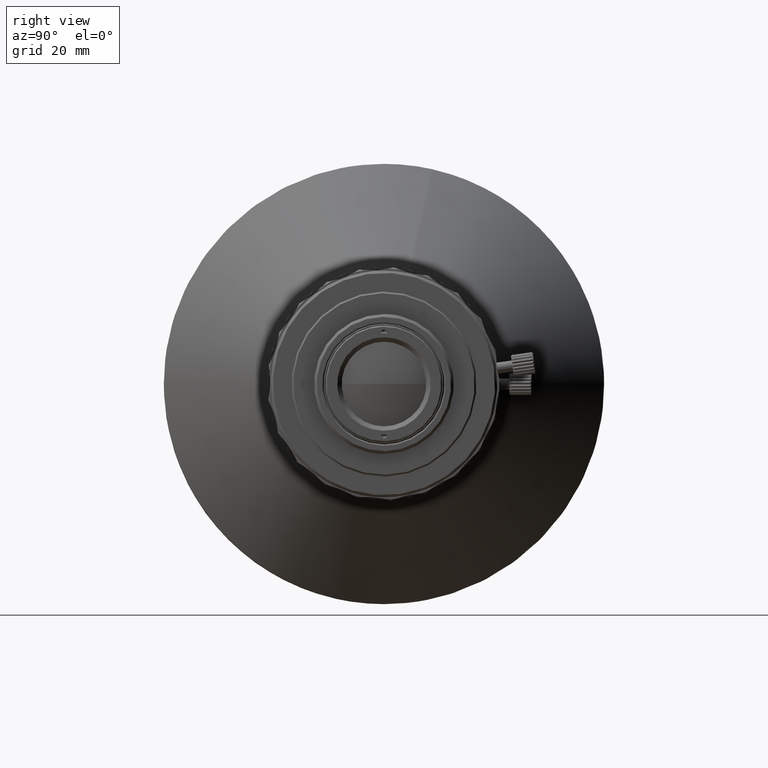
[diagram: clean part render]
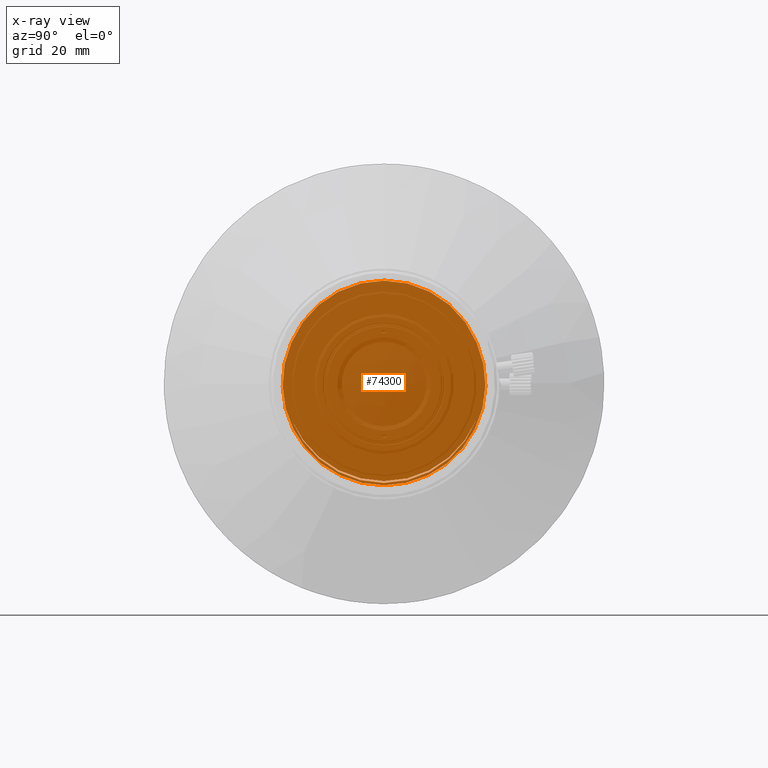
[diagram: x-ray — body ghosted, one internal face saturated and labeled with its STEP entity id]
A machine part, right view, then the same camera in x-ray: the body is ghosted and one INTERNAL B-rep face — a face not visible from any outside direction — is saturated and labeled: STEP entity #74300.
In plain terms, the highlighted planar face has unit normal (-1, 0, 0).
Its self-contained STEP definition (entity closure, byte-faithful):
#4233 = DIRECTION ( 'NONE',  ( 0.000000000000000000, 0.000000000000000000, -1.000000000000000000 ) ) ;
#5985 = DIRECTION ( 'NONE',  ( 0.000000000000000000, 0.000000000000000000, 1.000000000000000000 ) ) ;
#6525 = CARTESIAN_POINT ( 'NONE',  ( 1.766999999999999904, 0.000000000000000000, 0.5480619857394231076 ) ) ;
#9457 = CARTESIAN_POINT ( 'NONE',  ( 1.766999999999999904, 0.000000000000000000, 0.5480619857394231076 ) ) ;
#11777 = CARTESIAN_POINT ( 'NONE',  ( 1.766999999999999904, 2.975999692594989788E-09, -17.99999999702400544 ) ) ;
#12095 = DIRECTION ( 'NONE',  ( 1.000000000000000000, 0.000000000000000000, 0.000000000000000000 ) ) ;
#12993 = VERTEX_POINT ( 'NONE', #11777 ) ;
#14002 = EDGE_CURVE ( 'NONE', #21518, #57614, #62373, .T. ) ;
#15633 = CARTESIAN_POINT ( 'NONE',  ( 1.766999999999999904, 2.975999692594989788E-09, -2.220446049250309925E-15 ) ) ;
#17156 = ORIENTED_EDGE ( 'NONE', *, *, #29795, .T. ) ;
#18125 = CIRCLE ( 'NONE', #46917, 17.99999999702400189 ) ;
#18331 = CIRCLE ( 'NONE', #62166, 18.41985093242579907 ) ;
#18469 = EDGE_LOOP ( 'NONE', ( #37378, #59983, #17156 ) ) ;
#19261 = DIRECTION ( 'NONE',  ( -1.000000000000000000, 0.000000000000000000, 0.000000000000000000 ) ) ;
#20245 = CARTESIAN_POINT ( 'NONE',  ( 1.766999999999999904, 16.78019908883086941, -6.513441373954288238 ) ) ;
#20672 = CARTESIAN_POINT ( 'NONE',  ( 1.766999999999999904, 0.000000000000000000, 0.5480619857394231076 ) ) ;
#21518 = VERTEX_POINT ( 'NONE', #75067 ) ;
#22757 = DIRECTION ( 'NONE',  ( 0.000000000000000000, 0.000000000000000000, -1.000000000000000000 ) ) ;
#24680 = CARTESIAN_POINT ( 'NONE',  ( 1.766999999999999904, 2.975999692594989788E-09, -2.220446049250309925E-15 ) ) ;
#24847 = AXIS2_PLACEMENT_3D ( 'NONE', #40958, #19261, #5985 ) ;
#28330 = CIRCLE ( 'NONE', #68394, 17.99999999702400189 ) ;
#28757 = AXIS2_PLACEMENT_3D ( 'NONE', #9457, #63571, #38919 ) ;
#29795 = EDGE_CURVE ( 'NONE', #59348, #55797, #34014, .T. ) ;
#30708 = CIRCLE ( 'NONE', #40719, 18.41985093242579907 ) ;
#34014 = CIRCLE ( 'NONE', #42766, 18.20549123643099776 ) ;
#34079 = DIRECTION ( 'NONE',  ( 1.000000000000000000, 0.000000000000000000, 0.000000000000000000 ) ) ;
#36234 = CARTESIAN_POINT ( 'NONE',  ( 1.766999999999999904, -16.78019901214234011, -6.513441556188673154 ) ) ;
#37378 = ORIENTED_EDGE ( 'NONE', *, *, #49083, .T. ) ;
#37830 = EDGE_CURVE ( 'NONE', #58302, #66745, #30708, .T. ) ;
#38181 = EDGE_LOOP ( 'NONE', ( #55730, #60449, #48262, #57664 ) ) ;
#38919 = DIRECTION ( 'NONE',  ( 0.000000000000000000, 0.000000000000000000, 1.000000000000000000 ) ) ;
#39214 = CARTESIAN_POINT ( 'NONE',  ( 1.766999999999999904, 0.000000000000000000, 18.75355322217042087 ) ) ;
#39680 = PLANE ( 'NONE',  #28757 ) ;
#40719 = AXIS2_PLACEMENT_3D ( 'NONE', #24680, #12095, #47799 ) ;
#40958 = CARTESIAN_POINT ( 'NONE',  ( 1.766999999999999904, 0.000000000000000000, 0.5480619857394231076 ) ) ;
#42766 = AXIS2_PLACEMENT_3D ( 'NONE', #20672, #62221, #68501 ) ;
#46917 = AXIS2_PLACEMENT_3D ( 'NONE', #52157, #53307, #22757 ) ;
#47047 = DIRECTION ( 'NONE',  ( 1.000000000000000000, 0.000000000000000000, 0.000000000000000000 ) ) ;
#47660 = EDGE_CURVE ( 'NONE', #12993, #59348, #18125, .T. ) ;
#47799 = DIRECTION ( 'NONE',  ( 0.000000000000000000, 0.000000000000000000, -1.000000000000000000 ) ) ;
#48262 = ORIENTED_EDGE ( 'NONE', *, *, #37830, .F. ) ;
#49083 = EDGE_CURVE ( 'NONE', #55797, #12993, #28330, .T. ) ;
#50688 = CARTESIAN_POINT ( 'NONE',  ( 1.766999999999999904, 2.975999692594989788E-09, -18.41985093242580263 ) ) ;
#52157 = CARTESIAN_POINT ( 'NONE',  ( 1.766999999999999904, 2.975999692594989788E-09, -2.220446049250309925E-15 ) ) ;
#52543 = DIRECTION ( 'NONE',  ( 0.000000000000000000, 0.000000000000000000, -1.000000000000000000 ) ) ;
#53307 = DIRECTION ( 'NONE',  ( 1.000000000000000000, 0.000000000000000000, 0.000000000000000000 ) ) ;
#53588 = CIRCLE ( 'NONE', #57317, 18.20549123643099776 ) ;
#54382 = DIRECTION ( 'NONE',  ( 0.000000000000000000, 0.000000000000000000, 1.000000000000000000 ) ) ;
#55730 = ORIENTED_EDGE ( 'NONE', *, *, #14002, .T. ) ;
#55797 = VERTEX_POINT ( 'NONE', #36234 ) ;
#56146 = FACE_BOUND ( 'NONE', #18469, .T. ) ;
#57317 = AXIS2_PLACEMENT_3D ( 'NONE', #6525, #65007, #54382 ) ;
#57614 = VERTEX_POINT ( 'NONE', #39214 ) ;
#57664 = ORIENTED_EDGE ( 'NONE', *, *, #67807, .F. ) ;
#58302 = VERTEX_POINT ( 'NONE', #50688 ) ;
#59348 = VERTEX_POINT ( 'NONE', #20245 ) ;
#59983 = ORIENTED_EDGE ( 'NONE', *, *, #47660, .T. ) ;
#60189 = CARTESIAN_POINT ( 'NONE',  ( 1.766999999999999904, 16.85196689286234673, 7.436539538990015963 ) ) ;
#60449 = ORIENTED_EDGE ( 'NONE', *, *, #72618, .T. ) ;
#62166 = AXIS2_PLACEMENT_3D ( 'NONE', #15633, #34079, #4233 ) ;
#62221 = DIRECTION ( 'NONE',  ( -1.000000000000000000, 0.000000000000000000, 0.000000000000000000 ) ) ;
#62373 = CIRCLE ( 'NONE', #24847, 18.20549123643099776 ) ;
#63571 = DIRECTION ( 'NONE',  ( -1.000000000000000000, 0.000000000000000000, 0.000000000000000000 ) ) ;
#65007 = DIRECTION ( 'NONE',  ( -1.000000000000000000, 0.000000000000000000, 0.000000000000000000 ) ) ;
#65080 = CARTESIAN_POINT ( 'NONE',  ( 1.766999999999999904, 2.975999692594989788E-09, -2.220446049250309925E-15 ) ) ;
#66745 = VERTEX_POINT ( 'NONE', #60189 ) ;
#67807 = EDGE_CURVE ( 'NONE', #21518, #58302, #18331, .T. ) ;
#68394 = AXIS2_PLACEMENT_3D ( 'NONE', #65080, #47047, #52543 ) ;
#68501 = DIRECTION ( 'NONE',  ( 0.000000000000000000, 0.000000000000000000, 1.000000000000000000 ) ) ;
#72618 = EDGE_CURVE ( 'NONE', #57614, #66745, #53588, .T. ) ;
#74300 = ADVANCED_FACE ( 'NONE', ( #75378, #56146 ), #39680, .T. ) ;
#75067 = CARTESIAN_POINT ( 'NONE',  ( 1.766999999999999904, -16.85196696767179247, 7.436539355976223398 ) ) ;
#75378 = FACE_OUTER_BOUND ( 'NONE', #38181, .T. ) ;